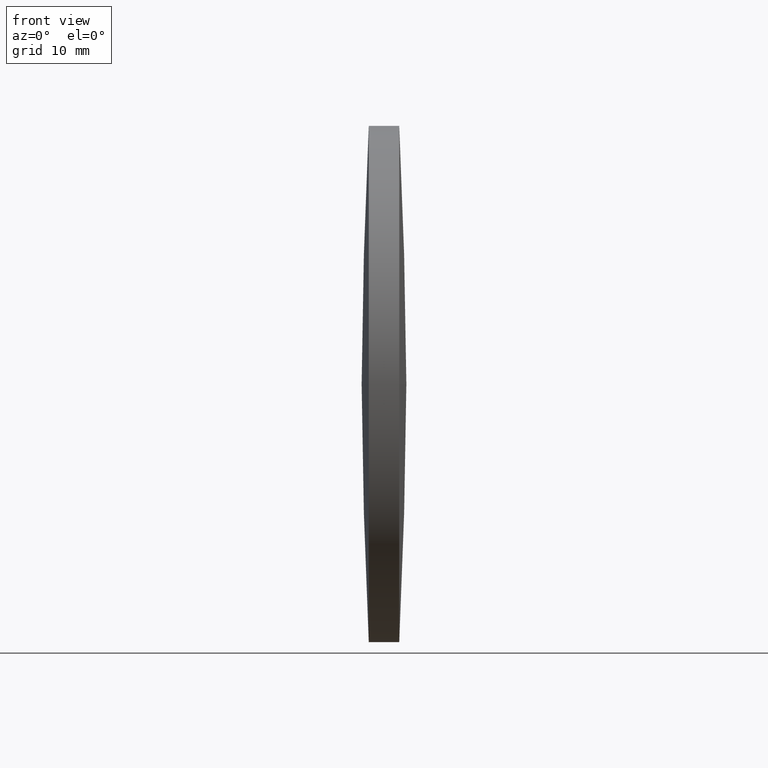
[diagram: clean part render]
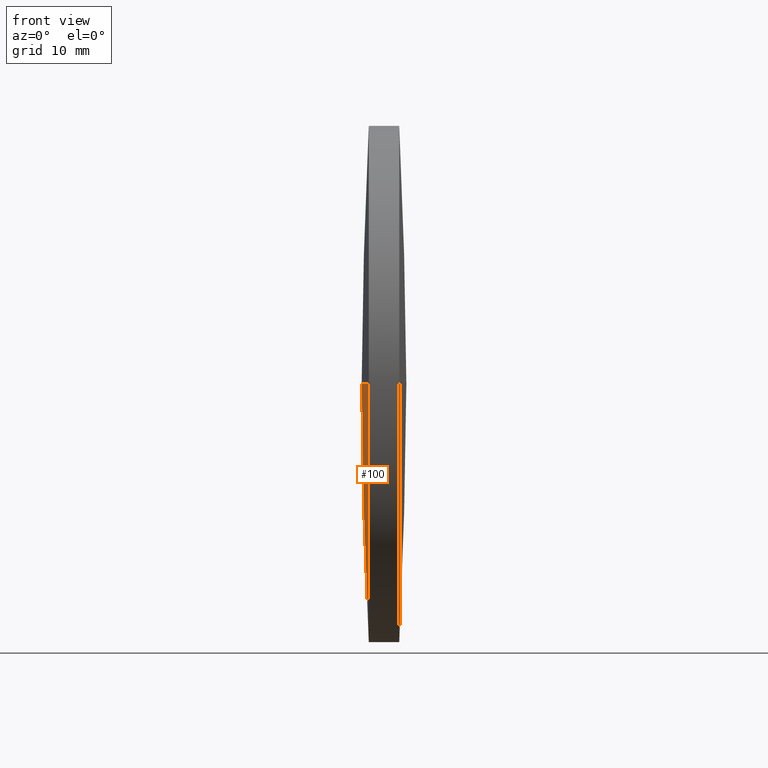
[diagram: same view with one face highlighted and labeled with its STEP entity id]
A machine part, front view. The second image highlights one B-rep face of the part: STEP entity #100.
In plain terms, the highlighted spherical surface has radius 461.168 mm.
Its self-contained STEP definition (entity closure, byte-faithful):
#20 = EDGE_CURVE ( 'NONE', #143, #316, #212, .T. ) ;
#27 = CIRCLE ( 'NONE', #220, 25.39999999999999100 ) ;
#38 = FACE_OUTER_BOUND ( 'NONE', #227, .T. ) ;
#41 = AXIS2_PLACEMENT_3D ( 'NONE', #242, #269, #188 ) ;
#58 = CARTESIAN_POINT ( 'NONE',  ( 631.8839497459532600, 97.23222604636890800, 0.0000000000000000000 ) ) ;
#59 = CIRCLE ( 'NONE', #75, 461.1675577966281000 ) ;
#61 = CARTESIAN_POINT ( 'NONE',  ( 171.4164086921822200, 122.6322260463687600, 0.0000000000000000000 ) ) ;
#64 = AXIS2_PLACEMENT_3D ( 'NONE', #261, #215, #318 ) ;
#66 = ORIENTED_EDGE ( 'NONE', *, *, #344, .T. ) ;
#75 = AXIS2_PLACEMENT_3D ( 'NONE', #58, #324, #163 ) ;
#95 = VERTEX_POINT ( 'NONE', #268 ) ;
#100 = ADVANCED_FACE ( 'NONE', ( #38 ), #210, .T. ) ;
#106 = AXIS2_PLACEMENT_3D ( 'NONE', #217, #164, #323 ) ;
#143 = VERTEX_POINT ( 'NONE', #61 ) ;
#153 = ORIENTED_EDGE ( 'NONE', *, *, #225, .T. ) ;
#163 = DIRECTION ( 'NONE',  ( 0.0000000000000000000, 1.000000000000000000, 1.224646799147353000E-016 ) ) ;
#164 = DIRECTION ( 'NONE',  ( -1.000000000000000000, -0.0000000000000000000, -0.0000000000000000000 ) ) ;
#172 = VERTEX_POINT ( 'NONE', #296 ) ;
#188 = DIRECTION ( 'NONE',  ( 0.0000000000000000000, 1.000000000000000000, 0.0000000000000000000 ) ) ;
#199 = ORIENTED_EDGE ( 'NONE', *, *, #276, .T. ) ;
#210 = SPHERICAL_SURFACE ( 'NONE', #41, 461.1675577966281000 ) ;
#212 = CIRCLE ( 'NONE', #64, 461.1675577966279900 ) ;
#215 = DIRECTION ( 'NONE',  ( -0.0000000000000000000, 0.0000000000000000000, 1.000000000000000000 ) ) ;
#217 = CARTESIAN_POINT ( 'NONE',  ( 171.4164086921822200, 97.23222604636956100, 0.0000000000000000000 ) ) ;
#218 = DIRECTION ( 'NONE',  ( -1.000000000000000000, -0.0000000000000000000, -0.0000000000000000000 ) ) ;
#220 = AXIS2_PLACEMENT_3D ( 'NONE', #325, #218, #246 ) ;
#225 = EDGE_CURVE ( 'NONE', #172, #316, #59, .T. ) ;
#227 = EDGE_LOOP ( 'NONE', ( #66, #199, #153, #279 ) ) ;
#242 = CARTESIAN_POINT ( 'NONE',  ( 631.8839497459532600, 97.23222604636890800, 0.0000000000000000000 ) ) ;
#246 = DIRECTION ( 'NONE',  ( 0.0000000000000000000, 0.0000000000000000000, 1.000000000000000000 ) ) ;
#261 = CARTESIAN_POINT ( 'NONE',  ( 631.8839497459532600, 97.23222604636890800, 0.0000000000000000000 ) ) ;
#263 = CIRCLE ( 'NONE', #106, 25.39999999999999100 ) ;
#268 = CARTESIAN_POINT ( 'NONE',  ( 171.4164086921822200, 97.23222604636956100, -25.39999999999999100 ) ) ;
#269 = DIRECTION ( 'NONE',  ( -0.0000000000000000000, 0.0000000000000000000, -1.000000000000000000 ) ) ;
#276 = EDGE_CURVE ( 'NONE', #95, #172, #27, .T. ) ;
#279 = ORIENTED_EDGE ( 'NONE', *, *, #20, .F. ) ;
#293 = CARTESIAN_POINT ( 'NONE',  ( 170.7163919493251900, 97.23222604636893600, 0.0000000000000000000 ) ) ;
#296 = CARTESIAN_POINT ( 'NONE',  ( 171.4164086921822200, 71.83222604636974000, -3.110602869834177100E-015 ) ) ;
#316 = VERTEX_POINT ( 'NONE', #293 ) ;
#318 = DIRECTION ( 'NONE',  ( 1.000000000000000000, 0.0000000000000000000, 0.0000000000000000000 ) ) ;
#323 = DIRECTION ( 'NONE',  ( 0.0000000000000000000, 0.0000000000000000000, 1.000000000000000000 ) ) ;
#324 = DIRECTION ( 'NONE',  ( 0.0000000000000000000, 1.224646799147353200E-016, -1.000000000000000000 ) ) ;
#325 = CARTESIAN_POINT ( 'NONE',  ( 171.4164086921822200, 97.23222604636956100, 0.0000000000000000000 ) ) ;
#344 = EDGE_CURVE ( 'NONE', #143, #95, #263, .T. ) ;